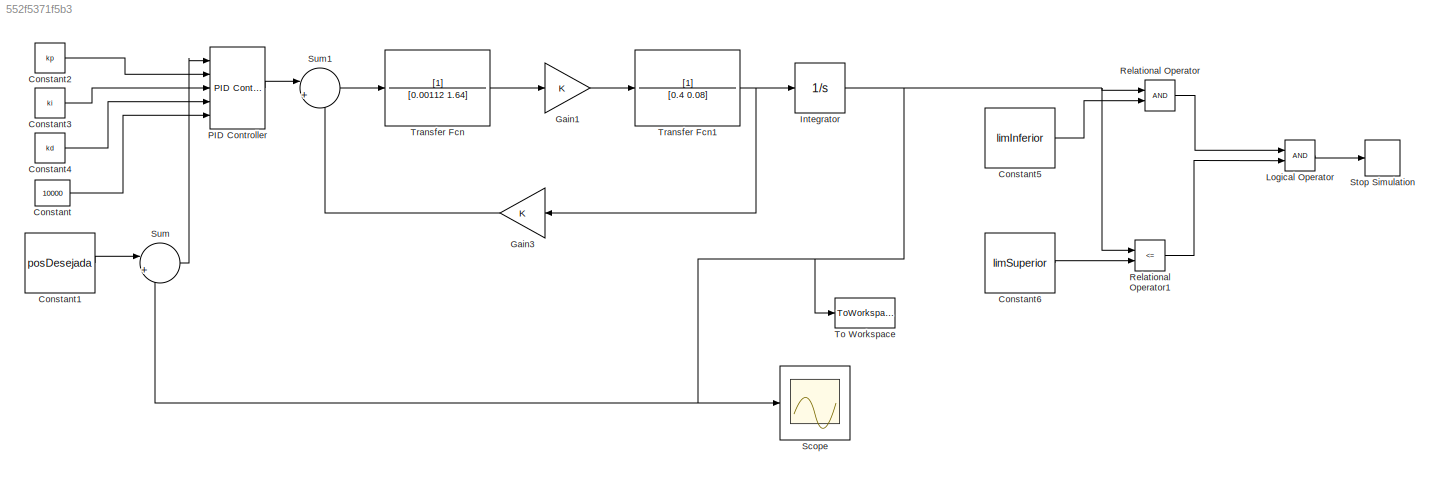
MODEL slx_552f5371f5b3
KIND model
CONFIG AbsTol = auto
CONFIG EnableMultiTasking = off
CONFIG FixedStep = auto
CONFIG MaxStep = auto
CONFIG MinStep = auto
CONFIG RelTol = 1e-3
CONFIG SampleTimeConstraint = Unconstrained
CONFIG Solver = VariableStepAuto
CONFIG SolverName = VariableStepAuto
CONFIG StartTime = 0.0
CONFIG StopTime = 100
BLOCK [Constant] Constant
  Value = 10000
BLOCK [Constant] Constant1
  Value = posDesejada
BLOCK [Constant] Constant2
  Value = kp
BLOCK [Constant] Constant3
  Value = ki
BLOCK [Constant] Constant4
  Value = kd
BLOCK [Constant] Constant5
  Value = limInferior
BLOCK [Constant] Constant6
  Value = limSuperior
BLOCK [Gain] Gain1
  OutDataTypeStr = Inherit: Inherit via internal rule
  ParamDataTypeStr = Inherit: Inherit via internal rule
  SaturateOnIntegerOverflow = off
BLOCK [Gain] Gain3
  OutDataTypeStr = Inherit: Inherit via internal rule
  ParamDataTypeStr = Inherit: Inherit via internal rule
  SaturateOnIntegerOverflow = off
BLOCK [Integrator] Integrator
  Ports = [1, 1]
BLOCK [Logic] Logical Operator
  AllPortsSameDT = off
  OutDataTypeStr = boolean
  Ports = [2, 1]
BLOCK [Reference] PID Controller  REF=simulink/Continuous/PID Controller
  Ports = [5, 1]
  SourceBlock = simulink/Continuous/PID Controller
  SourceProductBaseCode = SL
  SourceProductName = Simulink
  SourceType = PID 1dof
BLOCK [RelationalOperator] Relational Operator
  InputSameDT = off
  OutDataTypeStr = boolean
  Ports = [2, 1]
  RndMeth = Simplest
BLOCK [RelationalOperator] Relational Operator1
  InputSameDT = off
  Operator = <=
  OutDataTypeStr = boolean
  Ports = [2, 1]
  RndMeth = Simplest
BLOCK [Scope] Scope
  Floating = off
  NumInputPorts = 1
  Ports = [1]
  ScopeSpecificationString = Simulink.scopes.TimeScopeBlockCfg('CurrentConfiguration', extmgr.ConfigurationSet(extmgr.Configuration('Core','General UI',true),extmgr.Configuration('Core','Source UI',true),extmgr.Configuration('Sources','WiredSimulink',true),extmgr.Configuration('Visuals','Time Domain',true,'SerializedDisplays',{struct('MinYLimReal','0.00000','MaxYLimReal','202.40146','YLabelReal','','MinYLimMag','0.00000','Max...<+1410ch>
BLOCK [Stop] Stop Simulation
BLOCK [Sum] Sum
  IconShape = round
  InputSameDT = off
  Inputs = |+-
  OutDataTypeStr = Inherit: Inherit via internal rule
  Ports = [2, 1]
  SaturateOnIntegerOverflow = off
BLOCK [Sum] Sum1
  IconShape = round
  InputSameDT = off
  Inputs = |+-
  OutDataTypeStr = Inherit: Inherit via internal rule
  Ports = [2, 1]
  SaturateOnIntegerOverflow = off
BLOCK [ToWorkspace] To Workspace
  FixptAsFi = on
  MaxDataPoints = inf
  Ports = [1]
  SampleTime = -1
  Save2DSignal = 3-D array (concatenate along third dimension)
  SaveFormat = Timeseries
  VariableName = posfinal
BLOCK [TransferFcn] Transfer Fcn
  Denominator = [0.00112 1.64]
BLOCK [TransferFcn] Transfer Fcn1
  Denominator = [0.4 0.08]
LINE Constant1:1 -> Sum:1
LINE Constant2:1 -> PID Controller:2
LINE Constant3:1 -> PID Controller:3
LINE Constant4:1 -> PID Controller:4
LINE Constant5:1 -> Relational Operator:2
LINE Constant6:1 -> Relational Operator1:2
LINE Constant:1 -> PID Controller:5
LINE Gain1:1 -> Transfer Fcn1:1
LINE Gain3:1 -> Sum1:2
NET Integrator:1 -> Relational Operator1:1, Relational Operator:1, Scope:1, Sum:2, To Workspace:1
LINE Logical Operator:1 -> Stop Simulation:1
LINE PID Controller:1 -> Sum1:1
LINE Relational Operator1:1 -> Logical Operator:2
LINE Relational Operator:1 -> Logical Operator:1
LINE Sum1:1 -> Transfer Fcn:1
LINE Sum:1 -> PID Controller:1
NET Transfer Fcn1:1 -> Gain3:1, Integrator:1
LINE Transfer Fcn:1 -> Gain1:1
note: NET lines group one-source signal fan-out (src -> all destinations, sorted); 1:1 wires keep LINE
